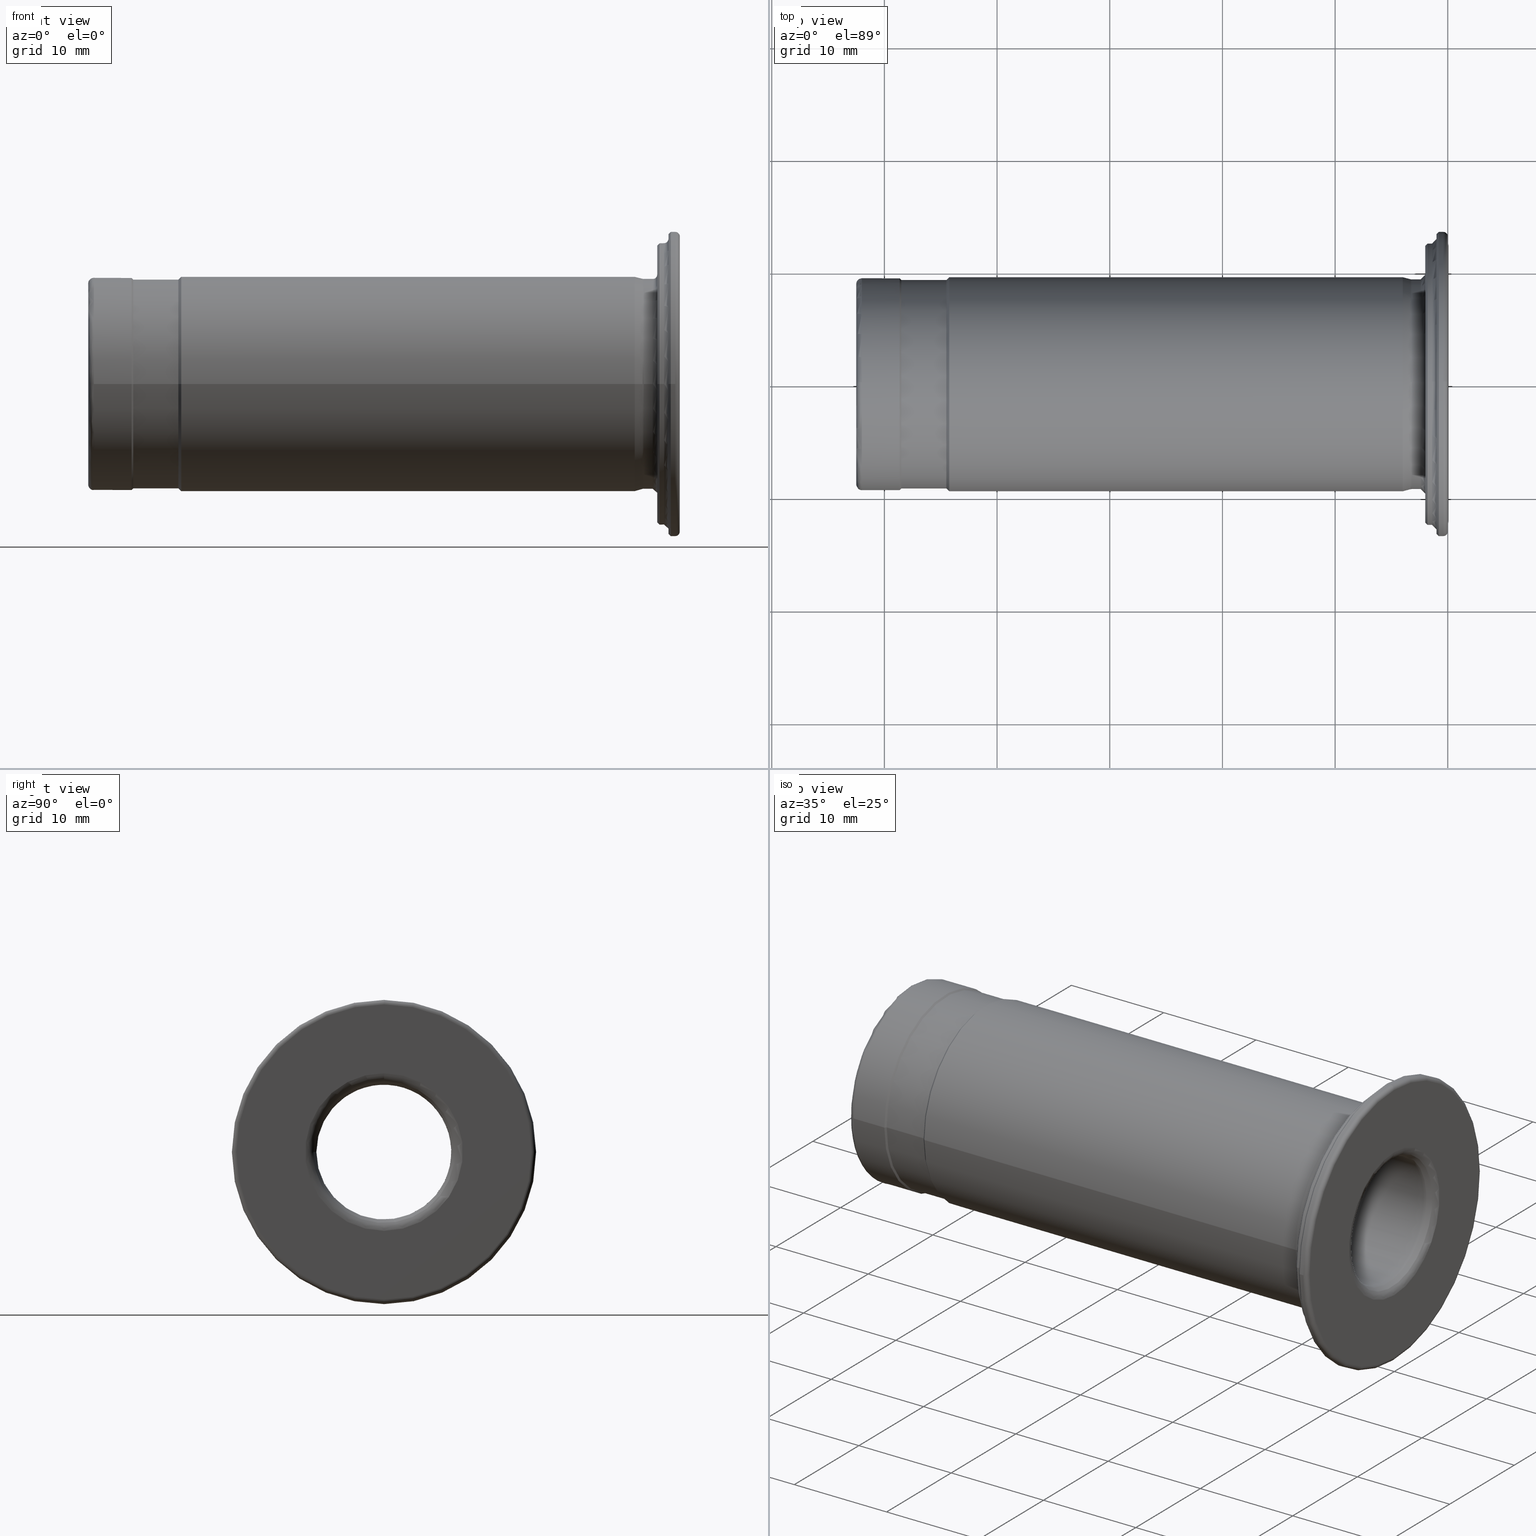
[diagram: canonical four-view strip — front | top / right | iso, engineering-drawing reading convention]
A machine part, canonical four-view strip (front | top / right | iso — engineering-drawing reading convention). The complete STEP part file that produces these views, byte-faithful:
ISO-10303-21;
HEADER;
/* Generated by software containing ST-Developer
 * from STEP Tools, Inc. (www.steptools.com) 
 */

FILE_DESCRIPTION(
/* description */ (''),
/* implementation_level */ '2;1');

FILE_NAME(
/* name */ 
'\\\\SSKT-NAS\\Lab-Data\\\X2\C5F0AD6CC18C\X0\\\DRAWING_3D\\1. \X2\C778BCA4D130\X0\\\
4. LAY-OUT\\ACCESSORY&OTEHERS\\HYDRAULIC CHUCK\\REDUCTION SLEEVE (COLL
ET)\\HK\\HK19.05\\HK19.05-12\\HK19.05-12.stp',
/* time_stamp */ '2022-11-17T11:42:56+09:00',
/* author */ ('YSH'),
/* organization */ (''),
/* preprocessor_version */ 'ST-DEVELOPER v18.1',
/* originating_system */ 'Autodesk Inventor 2022',
/* authorisation */ '');

FILE_SCHEMA (('AUTOMOTIVE_DESIGN { 1 0 10303 214 3 1 1 }'));
ENDSEC;

DATA;
#10=MECHANICAL_DESIGN_GEOMETRIC_PRESENTATION_REPRESENTATION('',(#421,#422,
#423,#424,#425,#426,#427,#428,#429,#430,#431,#432,#433,#434,#435,#436,#437,
#438,#439,#440,#441,#442,#443,#444,#445,#446,#447,#448,#449,#450),#886);
#11=SHAPE_REPRESENTATION_RELATIONSHIP('SRR','None',#893,#12);
#12=ADVANCED_BREP_SHAPE_REPRESENTATION('',(#13),#885);
#13=MANIFOLD_SOLID_BREP('\X2\C194B9ACB4DC\X0\1',#480);
#14=FACE_BOUND('',#113,.T.);
#15=FACE_BOUND('',#118,.T.);
#16=FACE_BOUND('',#123,.T.);
#17=FACE_BOUND('',#134,.T.);
#18=PLANE('',#531);
#19=PLANE('',#541);
#20=PLANE('',#551);
#21=PLANE('',#578);
#22=CONICAL_SURFACE('',#510,9.35000000000012,0.785398163397448);
#23=CONICAL_SURFACE('',#514,9.40000000000014,0.785398163397448);
#24=CONICAL_SURFACE('',#518,9.43181483474213,0.261799387799977);
#25=CONICAL_SURFACE('',#533,12.4000000000002,0.785398163396198);
#26=CONICAL_SURFACE('',#543,13.4000000000002,0.785398163396915);
#27=CONICAL_SURFACE('',#557,6.16348369626324,0.523598775598335);
#28=CONICAL_SURFACE('',#566,6.7500000000006,0.785398163397528);
#29=CONICAL_SURFACE('',#570,7.87500000000014,0.785398163397614);
#30=LINE('',#762,#47);
#31=LINE('',#766,#48);
#32=LINE('',#770,#49);
#33=LINE('',#774,#50);
#34=LINE('',#778,#51);
#35=LINE('',#783,#52);
#36=LINE('',#795,#53);
#37=LINE('',#807,#54);
#38=LINE('',#812,#55);
#39=LINE('',#824,#56);
#40=LINE('',#829,#57);
#41=LINE('',#846,#58);
#42=LINE('',#858,#59);
#43=LINE('',#862,#60);
#44=LINE('',#866,#61);
#45=LINE('',#870,#62);
#46=LINE('',#874,#63);
#47=VECTOR('',#595,9.42500000000015);
#48=VECTOR('',#600,9.35000000000012);
#49=VECTOR('',#605,9.27500000000011);
#50=VECTOR('',#610,9.40000000000014);
#51=VECTOR('',#615,9.52500000000017);
#52=VECTOR('',#620,9.43181483474213);
#53=VECTOR('',#635,9.32499999999943);
#54=VECTOR('',#652,12.4000000000002);
#55=VECTOR('',#657,12.4999999999997);
#56=VECTOR('',#674,13.4000000000002);
#57=VECTOR('',#679,13.5);
#58=VECTOR('',#702,6.16348369626323);
#59=VECTOR('',#717,6.00000000000101);
#60=VECTOR('',#722,6.7500000000006);
#61=VECTOR('',#727,7.50000000000016);
#62=VECTOR('',#732,7.87500000000014);
#63=VECTOR('',#737,8.25000000000014);
#64=CYLINDRICAL_SURFACE('',#508,9.42500000000015);
#65=CYLINDRICAL_SURFACE('',#512,9.27500000000011);
#66=CYLINDRICAL_SURFACE('',#516,9.52500000000017);
#67=CYLINDRICAL_SURFACE('',#525,9.32499999999943);
#68=CYLINDRICAL_SURFACE('',#535,12.4999999999997);
#69=CYLINDRICAL_SURFACE('',#545,13.5);
#70=CYLINDRICAL_SURFACE('',#564,6.00000000000101);
#71=CYLINDRICAL_SURFACE('',#568,7.50000000000016);
#72=CYLINDRICAL_SURFACE('',#572,8.25000000000014);
#73=FACE_OUTER_BOUND('',#102,.T.);
#74=FACE_OUTER_BOUND('',#103,.T.);
#75=FACE_OUTER_BOUND('',#104,.T.);
#76=FACE_OUTER_BOUND('',#105,.T.);
#77=FACE_OUTER_BOUND('',#106,.T.);
#78=FACE_OUTER_BOUND('',#107,.T.);
#79=FACE_OUTER_BOUND('',#108,.T.);
#80=FACE_OUTER_BOUND('',#109,.T.);
#81=FACE_OUTER_BOUND('',#110,.T.);
#82=FACE_OUTER_BOUND('',#111,.T.);
#83=FACE_OUTER_BOUND('',#112,.T.);
#84=FACE_OUTER_BOUND('',#114,.T.);
#85=FACE_OUTER_BOUND('',#115,.T.);
#86=FACE_OUTER_BOUND('',#116,.T.);
#87=FACE_OUTER_BOUND('',#117,.T.);
#88=FACE_OUTER_BOUND('',#119,.T.);
#89=FACE_OUTER_BOUND('',#120,.T.);
#90=FACE_OUTER_BOUND('',#121,.T.);
#91=FACE_OUTER_BOUND('',#122,.T.);
#92=FACE_OUTER_BOUND('',#124,.T.);
#93=FACE_OUTER_BOUND('',#125,.T.);
#94=FACE_OUTER_BOUND('',#126,.T.);
#95=FACE_OUTER_BOUND('',#127,.T.);
#96=FACE_OUTER_BOUND('',#128,.T.);
#97=FACE_OUTER_BOUND('',#129,.T.);
#98=FACE_OUTER_BOUND('',#130,.T.);
#99=FACE_OUTER_BOUND('',#131,.T.);
#100=FACE_OUTER_BOUND('',#132,.T.);
#101=FACE_OUTER_BOUND('',#133,.T.);
#102=EDGE_LOOP('',(#285,#286,#287,#288,#289));
#103=EDGE_LOOP('',(#290,#291,#292,#293,#294));
#104=EDGE_LOOP('',(#295,#296,#297,#298));
#105=EDGE_LOOP('',(#299,#300,#301,#302));
#106=EDGE_LOOP('',(#303,#304,#305,#306));
#107=EDGE_LOOP('',(#307,#308,#309,#310));
#108=EDGE_LOOP('',(#311,#312,#313,#314,#315));
#109=EDGE_LOOP('',(#316,#317,#318,#319,#320,#321));
#110=EDGE_LOOP('',(#322,#323,#324,#325,#326,#327));
#111=EDGE_LOOP('',(#328,#329,#330,#331,#332));
#112=EDGE_LOOP('',(#333));
#113=EDGE_LOOP('',(#334));
#114=EDGE_LOOP('',(#335,#336,#337,#338));
#115=EDGE_LOOP('',(#339,#340,#341,#342,#343));
#116=EDGE_LOOP('',(#344,#345,#346,#347,#348));
#117=EDGE_LOOP('',(#349));
#118=EDGE_LOOP('',(#350));
#119=EDGE_LOOP('',(#351,#352,#353,#354));
#120=EDGE_LOOP('',(#355,#356,#357,#358,#359));
#121=EDGE_LOOP('',(#360,#361,#362,#363,#364));
#122=EDGE_LOOP('',(#365));
#123=EDGE_LOOP('',(#366));
#124=EDGE_LOOP('',(#367,#368,#369,#370,#371));
#125=EDGE_LOOP('',(#372,#373,#374,#375,#376,#377));
#126=EDGE_LOOP('',(#378,#379,#380,#381,#382,#383));
#127=EDGE_LOOP('',(#384,#385,#386,#387,#388));
#128=EDGE_LOOP('',(#389,#390,#391,#392));
#129=EDGE_LOOP('',(#393,#394,#395,#396));
#130=EDGE_LOOP('',(#397,#398,#399,#400));
#131=EDGE_LOOP('',(#401,#402,#403,#404,#405));
#132=EDGE_LOOP('',(#406,#407,#408,#409,#410));
#133=EDGE_LOOP('',(#411));
#134=EDGE_LOOP('',(#412));
#135=CIRCLE('',#504,9.42500000000015);
#136=CIRCLE('',#505,9.42500000000015);
#137=CIRCLE('',#506,0.5);
#138=CIRCLE('',#507,8.92500000000015);
#139=CIRCLE('',#509,9.42500000000012);
#140=CIRCLE('',#511,9.27500000000011);
#141=CIRCLE('',#513,9.27500000000011);
#142=CIRCLE('',#515,9.52500000000017);
#143=CIRCLE('',#517,9.52500000000017);
#144=CIRCLE('',#519,9.33862966948438);
#145=CIRCLE('',#520,9.33862966948438);
#146=CIRCLE('',#522,0.400000000000067);
#147=CIRCLE('',#523,9.32499999999992);
#148=CIRCLE('',#524,9.32499999999992);
#149=CIRCLE('',#526,9.32499999999907);
#150=CIRCLE('',#527,9.32499999999907);
#151=CIRCLE('',#529,0.4);
#152=CIRCLE('',#530,9.72499999999913);
#153=CIRCLE('',#532,12.3000000000001);
#154=CIRCLE('',#534,12.5000000000002);
#155=CIRCLE('',#536,12.4999999999993);
#156=CIRCLE('',#537,12.4999999999993);
#157=CIRCLE('',#539,0.4);
#158=CIRCLE('',#540,12.8999999999993);
#159=CIRCLE('',#542,13.3000000000003);
#160=CIRCLE('',#544,13.5);
#161=CIRCLE('',#546,13.5);
#162=CIRCLE('',#547,13.5);
#163=CIRCLE('',#549,13.1000000000001);
#164=CIRCLE('',#550,0.39999999999992);
#165=CIRCLE('',#552,7.00000000000102);
#166=CIRCLE('',#554,6.29289321881448);
#167=CIRCLE('',#555,6.29289321881448);
#168=CIRCLE('',#556,1.);
#169=CIRCLE('',#558,6.03407417371199);
#170=CIRCLE('',#559,6.03407417371199);
#171=CIRCLE('',#561,6.00000000000103);
#172=CIRCLE('',#562,6.00000000000103);
#173=CIRCLE('',#563,1.);
#174=CIRCLE('',#565,6.00000000000101);
#175=CIRCLE('',#567,7.50000000000018);
#176=CIRCLE('',#569,7.50000000000015);
#177=CIRCLE('',#571,8.25000000000014);
#178=CIRCLE('',#573,8.25000000000016);
#179=CIRCLE('',#574,8.25000000000016);
#180=CIRCLE('',#576,8.75000000000016);
#181=CIRCLE('',#577,0.5);
#182=VERTEX_POINT('',#752);
#183=VERTEX_POINT('',#753);
#184=VERTEX_POINT('',#756);
#185=VERTEX_POINT('',#760);
#186=VERTEX_POINT('',#764);
#187=VERTEX_POINT('',#768);
#188=VERTEX_POINT('',#772);
#189=VERTEX_POINT('',#776);
#190=VERTEX_POINT('',#780);
#191=VERTEX_POINT('',#781);
#192=VERTEX_POINT('',#786);
#193=VERTEX_POINT('',#788);
#194=VERTEX_POINT('',#792);
#195=VERTEX_POINT('',#793);
#196=VERTEX_POINT('',#798);
#197=VERTEX_POINT('',#802);
#198=VERTEX_POINT('',#805);
#199=VERTEX_POINT('',#809);
#200=VERTEX_POINT('',#810);
#201=VERTEX_POINT('',#815);
#202=VERTEX_POINT('',#819);
#203=VERTEX_POINT('',#822);
#204=VERTEX_POINT('',#826);
#205=VERTEX_POINT('',#827);
#206=VERTEX_POINT('',#832);
#207=VERTEX_POINT('',#836);
#208=VERTEX_POINT('',#839);
#209=VERTEX_POINT('',#840);
#210=VERTEX_POINT('',#845);
#211=VERTEX_POINT('',#847);
#212=VERTEX_POINT('',#851);
#213=VERTEX_POINT('',#852);
#214=VERTEX_POINT('',#857);
#215=VERTEX_POINT('',#861);
#216=VERTEX_POINT('',#865);
#217=VERTEX_POINT('',#869);
#218=VERTEX_POINT('',#873);
#219=VERTEX_POINT('',#875);
#220=VERTEX_POINT('',#879);
#221=EDGE_CURVE('',#182,#183,#135,.T.);
#222=EDGE_CURVE('',#183,#182,#136,.T.);
#223=EDGE_CURVE('',#183,#184,#137,.T.);
#224=EDGE_CURVE('',#184,#184,#138,.T.);
#225=EDGE_CURVE('',#185,#185,#139,.T.);
#226=EDGE_CURVE('',#185,#182,#30,.T.);
#227=EDGE_CURVE('',#186,#186,#140,.T.);
#228=EDGE_CURVE('',#186,#185,#31,.T.);
#229=EDGE_CURVE('',#187,#187,#141,.T.);
#230=EDGE_CURVE('',#187,#186,#32,.T.);
#231=EDGE_CURVE('',#188,#188,#142,.T.);
#232=EDGE_CURVE('',#188,#187,#33,.T.);
#233=EDGE_CURVE('',#189,#189,#143,.T.);
#234=EDGE_CURVE('',#189,#188,#34,.T.);
#235=EDGE_CURVE('',#190,#191,#144,.T.);
#236=EDGE_CURVE('',#190,#189,#35,.T.);
#237=EDGE_CURVE('',#191,#190,#145,.T.);
#238=EDGE_CURVE('',#191,#192,#146,.T.);
#239=EDGE_CURVE('',#193,#192,#147,.T.);
#240=EDGE_CURVE('',#192,#193,#148,.T.);
#241=EDGE_CURVE('',#194,#195,#149,.T.);
#242=EDGE_CURVE('',#194,#193,#36,.T.);
#243=EDGE_CURVE('',#195,#194,#150,.T.);
#244=EDGE_CURVE('',#195,#196,#151,.T.);
#245=EDGE_CURVE('',#196,#196,#152,.T.);
#246=EDGE_CURVE('',#197,#197,#153,.T.);
#247=EDGE_CURVE('',#198,#198,#154,.T.);
#248=EDGE_CURVE('',#198,#197,#37,.T.);
#249=EDGE_CURVE('',#199,#200,#155,.T.);
#250=EDGE_CURVE('',#199,#198,#38,.T.);
#251=EDGE_CURVE('',#200,#199,#156,.T.);
#252=EDGE_CURVE('',#200,#201,#157,.T.);
#253=EDGE_CURVE('',#201,#201,#158,.T.);
#254=EDGE_CURVE('',#202,#202,#159,.T.);
#255=EDGE_CURVE('',#203,#203,#160,.T.);
#256=EDGE_CURVE('',#203,#202,#39,.T.);
#257=EDGE_CURVE('',#204,#205,#161,.T.);
#258=EDGE_CURVE('',#204,#203,#40,.T.);
#259=EDGE_CURVE('',#205,#204,#162,.T.);
#260=EDGE_CURVE('',#206,#206,#163,.T.);
#261=EDGE_CURVE('',#206,#205,#164,.T.);
#262=EDGE_CURVE('',#207,#207,#165,.T.);
#263=EDGE_CURVE('',#208,#209,#166,.T.);
#264=EDGE_CURVE('',#209,#208,#167,.T.);
#265=EDGE_CURVE('',#209,#207,#168,.T.);
#266=EDGE_CURVE('',#208,#210,#41,.T.);
#267=EDGE_CURVE('',#211,#210,#169,.T.);
#268=EDGE_CURVE('',#210,#211,#170,.T.);
#269=EDGE_CURVE('',#212,#213,#171,.T.);
#270=EDGE_CURVE('',#213,#212,#172,.T.);
#271=EDGE_CURVE('',#213,#211,#173,.T.);
#272=EDGE_CURVE('',#212,#214,#42,.T.);
#273=EDGE_CURVE('',#214,#214,#174,.T.);
#274=EDGE_CURVE('',#214,#215,#43,.T.);
#275=EDGE_CURVE('',#215,#215,#175,.T.);
#276=EDGE_CURVE('',#215,#216,#44,.T.);
#277=EDGE_CURVE('',#216,#216,#176,.T.);
#278=EDGE_CURVE('',#216,#217,#45,.T.);
#279=EDGE_CURVE('',#217,#217,#177,.T.);
#280=EDGE_CURVE('',#217,#218,#46,.T.);
#281=EDGE_CURVE('',#219,#218,#178,.T.);
#282=EDGE_CURVE('',#218,#219,#179,.T.);
#283=EDGE_CURVE('',#220,#220,#180,.T.);
#284=EDGE_CURVE('',#220,#219,#181,.T.);
#285=ORIENTED_EDGE('',*,*,#221,.F.);
#286=ORIENTED_EDGE('',*,*,#222,.F.);
#287=ORIENTED_EDGE('',*,*,#223,.T.);
#288=ORIENTED_EDGE('',*,*,#224,.T.);
#289=ORIENTED_EDGE('',*,*,#223,.F.);
#290=ORIENTED_EDGE('',*,*,#225,.F.);
#291=ORIENTED_EDGE('',*,*,#226,.T.);
#292=ORIENTED_EDGE('',*,*,#221,.T.);
#293=ORIENTED_EDGE('',*,*,#222,.T.);
#294=ORIENTED_EDGE('',*,*,#226,.F.);
#295=ORIENTED_EDGE('',*,*,#227,.F.);
#296=ORIENTED_EDGE('',*,*,#228,.T.);
#297=ORIENTED_EDGE('',*,*,#225,.T.);
#298=ORIENTED_EDGE('',*,*,#228,.F.);
#299=ORIENTED_EDGE('',*,*,#229,.F.);
#300=ORIENTED_EDGE('',*,*,#230,.T.);
#301=ORIENTED_EDGE('',*,*,#227,.T.);
#302=ORIENTED_EDGE('',*,*,#230,.F.);
#303=ORIENTED_EDGE('',*,*,#231,.F.);
#304=ORIENTED_EDGE('',*,*,#232,.T.);
#305=ORIENTED_EDGE('',*,*,#229,.T.);
#306=ORIENTED_EDGE('',*,*,#232,.F.);
#307=ORIENTED_EDGE('',*,*,#233,.F.);
#308=ORIENTED_EDGE('',*,*,#234,.T.);
#309=ORIENTED_EDGE('',*,*,#231,.T.);
#310=ORIENTED_EDGE('',*,*,#234,.F.);
#311=ORIENTED_EDGE('',*,*,#235,.F.);
#312=ORIENTED_EDGE('',*,*,#236,.T.);
#313=ORIENTED_EDGE('',*,*,#233,.T.);
#314=ORIENTED_EDGE('',*,*,#236,.F.);
#315=ORIENTED_EDGE('',*,*,#237,.F.);
#316=ORIENTED_EDGE('',*,*,#235,.T.);
#317=ORIENTED_EDGE('',*,*,#238,.T.);
#318=ORIENTED_EDGE('',*,*,#239,.F.);
#319=ORIENTED_EDGE('',*,*,#240,.F.);
#320=ORIENTED_EDGE('',*,*,#238,.F.);
#321=ORIENTED_EDGE('',*,*,#237,.T.);
#322=ORIENTED_EDGE('',*,*,#241,.F.);
#323=ORIENTED_EDGE('',*,*,#242,.T.);
#324=ORIENTED_EDGE('',*,*,#239,.T.);
#325=ORIENTED_EDGE('',*,*,#240,.T.);
#326=ORIENTED_EDGE('',*,*,#242,.F.);
#327=ORIENTED_EDGE('',*,*,#243,.F.);
#328=ORIENTED_EDGE('',*,*,#241,.T.);
#329=ORIENTED_EDGE('',*,*,#244,.T.);
#330=ORIENTED_EDGE('',*,*,#245,.F.);
#331=ORIENTED_EDGE('',*,*,#244,.F.);
#332=ORIENTED_EDGE('',*,*,#243,.T.);
#333=ORIENTED_EDGE('',*,*,#246,.F.);
#334=ORIENTED_EDGE('',*,*,#245,.T.);
#335=ORIENTED_EDGE('',*,*,#247,.F.);
#336=ORIENTED_EDGE('',*,*,#248,.T.);
#337=ORIENTED_EDGE('',*,*,#246,.T.);
#338=ORIENTED_EDGE('',*,*,#248,.F.);
#339=ORIENTED_EDGE('',*,*,#249,.F.);
#340=ORIENTED_EDGE('',*,*,#250,.T.);
#341=ORIENTED_EDGE('',*,*,#247,.T.);
#342=ORIENTED_EDGE('',*,*,#250,.F.);
#343=ORIENTED_EDGE('',*,*,#251,.F.);
#344=ORIENTED_EDGE('',*,*,#249,.T.);
#345=ORIENTED_EDGE('',*,*,#252,.T.);
#346=ORIENTED_EDGE('',*,*,#253,.F.);
#347=ORIENTED_EDGE('',*,*,#252,.F.);
#348=ORIENTED_EDGE('',*,*,#251,.T.);
#349=ORIENTED_EDGE('',*,*,#254,.F.);
#350=ORIENTED_EDGE('',*,*,#253,.T.);
#351=ORIENTED_EDGE('',*,*,#255,.F.);
#352=ORIENTED_EDGE('',*,*,#256,.T.);
#353=ORIENTED_EDGE('',*,*,#254,.T.);
#354=ORIENTED_EDGE('',*,*,#256,.F.);
#355=ORIENTED_EDGE('',*,*,#257,.F.);
#356=ORIENTED_EDGE('',*,*,#258,.T.);
#357=ORIENTED_EDGE('',*,*,#255,.T.);
#358=ORIENTED_EDGE('',*,*,#258,.F.);
#359=ORIENTED_EDGE('',*,*,#259,.F.);
#360=ORIENTED_EDGE('',*,*,#260,.F.);
#361=ORIENTED_EDGE('',*,*,#261,.T.);
#362=ORIENTED_EDGE('',*,*,#259,.T.);
#363=ORIENTED_EDGE('',*,*,#257,.T.);
#364=ORIENTED_EDGE('',*,*,#261,.F.);
#365=ORIENTED_EDGE('',*,*,#260,.T.);
#366=ORIENTED_EDGE('',*,*,#262,.F.);
#367=ORIENTED_EDGE('',*,*,#263,.F.);
#368=ORIENTED_EDGE('',*,*,#264,.F.);
#369=ORIENTED_EDGE('',*,*,#265,.T.);
#370=ORIENTED_EDGE('',*,*,#262,.T.);
#371=ORIENTED_EDGE('',*,*,#265,.F.);
#372=ORIENTED_EDGE('',*,*,#263,.T.);
#373=ORIENTED_EDGE('',*,*,#264,.T.);
#374=ORIENTED_EDGE('',*,*,#266,.T.);
#375=ORIENTED_EDGE('',*,*,#267,.F.);
#376=ORIENTED_EDGE('',*,*,#268,.F.);
#377=ORIENTED_EDGE('',*,*,#266,.F.);
#378=ORIENTED_EDGE('',*,*,#269,.F.);
#379=ORIENTED_EDGE('',*,*,#270,.F.);
#380=ORIENTED_EDGE('',*,*,#271,.T.);
#381=ORIENTED_EDGE('',*,*,#267,.T.);
#382=ORIENTED_EDGE('',*,*,#268,.T.);
#383=ORIENTED_EDGE('',*,*,#271,.F.);
#384=ORIENTED_EDGE('',*,*,#269,.T.);
#385=ORIENTED_EDGE('',*,*,#270,.T.);
#386=ORIENTED_EDGE('',*,*,#272,.T.);
#387=ORIENTED_EDGE('',*,*,#273,.F.);
#388=ORIENTED_EDGE('',*,*,#272,.F.);
#389=ORIENTED_EDGE('',*,*,#273,.T.);
#390=ORIENTED_EDGE('',*,*,#274,.T.);
#391=ORIENTED_EDGE('',*,*,#275,.F.);
#392=ORIENTED_EDGE('',*,*,#274,.F.);
#393=ORIENTED_EDGE('',*,*,#275,.T.);
#394=ORIENTED_EDGE('',*,*,#276,.T.);
#395=ORIENTED_EDGE('',*,*,#277,.F.);
#396=ORIENTED_EDGE('',*,*,#276,.F.);
#397=ORIENTED_EDGE('',*,*,#277,.T.);
#398=ORIENTED_EDGE('',*,*,#278,.T.);
#399=ORIENTED_EDGE('',*,*,#279,.F.);
#400=ORIENTED_EDGE('',*,*,#278,.F.);
#401=ORIENTED_EDGE('',*,*,#279,.T.);
#402=ORIENTED_EDGE('',*,*,#280,.T.);
#403=ORIENTED_EDGE('',*,*,#281,.F.);
#404=ORIENTED_EDGE('',*,*,#282,.F.);
#405=ORIENTED_EDGE('',*,*,#280,.F.);
#406=ORIENTED_EDGE('',*,*,#283,.F.);
#407=ORIENTED_EDGE('',*,*,#284,.T.);
#408=ORIENTED_EDGE('',*,*,#281,.T.);
#409=ORIENTED_EDGE('',*,*,#282,.T.);
#410=ORIENTED_EDGE('',*,*,#284,.F.);
#411=ORIENTED_EDGE('',*,*,#224,.F.);
#412=ORIENTED_EDGE('',*,*,#283,.T.);
#413=TOROIDAL_SURFACE('',#503,8.92500000000015,0.5);
#414=TOROIDAL_SURFACE('',#521,9.72499999999999,0.400000000000067);
#415=TOROIDAL_SURFACE('',#528,9.72499999999907,0.4);
#416=TOROIDAL_SURFACE('',#538,12.8999999999993,0.4);
#417=TOROIDAL_SURFACE('',#548,13.1000000000001,0.39999999999992);
#418=TOROIDAL_SURFACE('',#553,7.00000000000102,1.);
#419=TOROIDAL_SURFACE('',#560,7.00000000000103,1.);
#420=TOROIDAL_SURFACE('',#575,8.75000000000016,0.5);
#421=STYLED_ITEM('',(#902),#451);
#422=STYLED_ITEM('',(#902),#452);
#423=STYLED_ITEM('',(#902),#453);
#424=STYLED_ITEM('',(#902),#454);
#425=STYLED_ITEM('',(#902),#455);
#426=STYLED_ITEM('',(#902),#456);
#427=STYLED_ITEM('',(#902),#457);
#428=STYLED_ITEM('',(#902),#458);
#429=STYLED_ITEM('',(#902),#459);
#430=STYLED_ITEM('',(#902),#460);
#431=STYLED_ITEM('',(#902),#461);
#432=STYLED_ITEM('',(#902),#462);
#433=STYLED_ITEM('',(#902),#463);
#434=STYLED_ITEM('',(#902),#464);
#435=STYLED_ITEM('',(#902),#465);
#436=STYLED_ITEM('',(#902),#466);
#437=STYLED_ITEM('',(#902),#467);
#438=STYLED_ITEM('',(#902),#468);
#439=STYLED_ITEM('',(#902),#469);
#440=STYLED_ITEM('',(#902),#470);
#441=STYLED_ITEM('',(#902),#471);
#442=STYLED_ITEM('',(#902),#472);
#443=STYLED_ITEM('',(#902),#473);
#444=STYLED_ITEM('',(#902),#474);
#445=STYLED_ITEM('',(#902),#475);
#446=STYLED_ITEM('',(#902),#476);
#447=STYLED_ITEM('',(#902),#477);
#448=STYLED_ITEM('',(#902),#478);
#449=STYLED_ITEM('',(#902),#479);
#450=STYLED_ITEM('',(#902),#13);
#451=ADVANCED_FACE('',(#73),#413,.T.);
#452=ADVANCED_FACE('',(#74),#64,.T.);
#453=ADVANCED_FACE('',(#75),#22,.T.);
#454=ADVANCED_FACE('',(#76),#65,.T.);
#455=ADVANCED_FACE('',(#77),#23,.T.);
#456=ADVANCED_FACE('',(#78),#66,.T.);
#457=ADVANCED_FACE('',(#79),#24,.T.);
#458=ADVANCED_FACE('',(#80),#414,.F.);
#459=ADVANCED_FACE('',(#81),#67,.T.);
#460=ADVANCED_FACE('',(#82),#415,.F.);
#461=ADVANCED_FACE('',(#83,#14),#18,.T.);
#462=ADVANCED_FACE('',(#84),#25,.T.);
#463=ADVANCED_FACE('',(#85),#68,.T.);
#464=ADVANCED_FACE('',(#86),#416,.F.);
#465=ADVANCED_FACE('',(#87,#15),#19,.T.);
#466=ADVANCED_FACE('',(#88),#26,.T.);
#467=ADVANCED_FACE('',(#89),#69,.T.);
#468=ADVANCED_FACE('',(#90),#417,.T.);
#469=ADVANCED_FACE('',(#91,#16),#20,.T.);
#470=ADVANCED_FACE('',(#92),#418,.T.);
#471=ADVANCED_FACE('',(#93),#27,.F.);
#472=ADVANCED_FACE('',(#94),#419,.T.);
#473=ADVANCED_FACE('',(#95),#70,.F.);
#474=ADVANCED_FACE('',(#96),#28,.F.);
#475=ADVANCED_FACE('',(#97),#71,.F.);
#476=ADVANCED_FACE('',(#98),#29,.F.);
#477=ADVANCED_FACE('',(#99),#72,.F.);
#478=ADVANCED_FACE('',(#100),#420,.T.);
#479=ADVANCED_FACE('',(#101,#17),#21,.T.);
#480=CLOSED_SHELL('',(#451,#452,#453,#454,#455,#456,#457,#458,#459,#460,
#461,#462,#463,#464,#465,#466,#467,#468,#469,#470,#471,#472,#473,#474,#475,
#476,#477,#478,#479));
#481=DERIVED_UNIT_ELEMENT(#484,1.);
#482=DERIVED_UNIT_ELEMENT(#888,-3.);
#483=DIMENSIONAL_EXPONENTS(1.,0.,0.,0.,0.,0.,0.);
#484=(
CONVERSION_BASED_UNIT('gram',#486)
MASS_UNIT()
NAMED_UNIT(#483)
);
#485=(
MASS_UNIT()
NAMED_UNIT(*)
SI_UNIT(.KILO.,.GRAM.)
);
#486=MASS_MEASURE_WITH_UNIT(MASS_MEASURE(0.001),#485);
#487=DERIVED_UNIT((#481,#482));
#488=MEASURE_REPRESENTATION_ITEM('density measure',
POSITIVE_RATIO_MEASURE(7.85),#487);
#489=PROPERTY_DEFINITION_REPRESENTATION(#494,#491);
#490=PROPERTY_DEFINITION_REPRESENTATION(#495,#492);
#491=REPRESENTATION('material name',(#493),#885);
#492=REPRESENTATION('density',(#488),#885);
#493=DESCRIPTIVE_REPRESENTATION_ITEM('SUJ2','SUJ2');
#494=PROPERTY_DEFINITION('material property','material name',#895);
#495=PROPERTY_DEFINITION('material property','density of part',#895);
#496=DATE_TIME_ROLE('creation_date');
#497=APPLIED_DATE_AND_TIME_ASSIGNMENT(#498,#496,(#895));
#498=DATE_AND_TIME(#499,#500);
#499=CALENDAR_DATE(2022,17,11);
#500=LOCAL_TIME(0,0,0.,#501);
#501=COORDINATED_UNIVERSAL_TIME_OFFSET(0,0,.BEHIND.);
#502=AXIS2_PLACEMENT_3D('placement',#750,#579,#580);
#503=AXIS2_PLACEMENT_3D('',#751,#581,#582);
#504=AXIS2_PLACEMENT_3D('',#754,#583,#584);
#505=AXIS2_PLACEMENT_3D('',#755,#585,#586);
#506=AXIS2_PLACEMENT_3D('',#757,#587,#588);
#507=AXIS2_PLACEMENT_3D('',#758,#589,#590);
#508=AXIS2_PLACEMENT_3D('',#759,#591,#592);
#509=AXIS2_PLACEMENT_3D('',#761,#593,#594);
#510=AXIS2_PLACEMENT_3D('',#763,#596,#597);
#511=AXIS2_PLACEMENT_3D('',#765,#598,#599);
#512=AXIS2_PLACEMENT_3D('',#767,#601,#602);
#513=AXIS2_PLACEMENT_3D('',#769,#603,#604);
#514=AXIS2_PLACEMENT_3D('',#771,#606,#607);
#515=AXIS2_PLACEMENT_3D('',#773,#608,#609);
#516=AXIS2_PLACEMENT_3D('',#775,#611,#612);
#517=AXIS2_PLACEMENT_3D('',#777,#613,#614);
#518=AXIS2_PLACEMENT_3D('',#779,#616,#617);
#519=AXIS2_PLACEMENT_3D('',#782,#618,#619);
#520=AXIS2_PLACEMENT_3D('',#784,#621,#622);
#521=AXIS2_PLACEMENT_3D('',#785,#623,#624);
#522=AXIS2_PLACEMENT_3D('',#787,#625,#626);
#523=AXIS2_PLACEMENT_3D('',#789,#627,#628);
#524=AXIS2_PLACEMENT_3D('',#790,#629,#630);
#525=AXIS2_PLACEMENT_3D('',#791,#631,#632);
#526=AXIS2_PLACEMENT_3D('',#794,#633,#634);
#527=AXIS2_PLACEMENT_3D('',#796,#636,#637);
#528=AXIS2_PLACEMENT_3D('',#797,#638,#639);
#529=AXIS2_PLACEMENT_3D('',#799,#640,#641);
#530=AXIS2_PLACEMENT_3D('',#800,#642,#643);
#531=AXIS2_PLACEMENT_3D('',#801,#644,#645);
#532=AXIS2_PLACEMENT_3D('',#803,#646,#647);
#533=AXIS2_PLACEMENT_3D('',#804,#648,#649);
#534=AXIS2_PLACEMENT_3D('',#806,#650,#651);
#535=AXIS2_PLACEMENT_3D('',#808,#653,#654);
#536=AXIS2_PLACEMENT_3D('',#811,#655,#656);
#537=AXIS2_PLACEMENT_3D('',#813,#658,#659);
#538=AXIS2_PLACEMENT_3D('',#814,#660,#661);
#539=AXIS2_PLACEMENT_3D('',#816,#662,#663);
#540=AXIS2_PLACEMENT_3D('',#817,#664,#665);
#541=AXIS2_PLACEMENT_3D('',#818,#666,#667);
#542=AXIS2_PLACEMENT_3D('',#820,#668,#669);
#543=AXIS2_PLACEMENT_3D('',#821,#670,#671);
#544=AXIS2_PLACEMENT_3D('',#823,#672,#673);
#545=AXIS2_PLACEMENT_3D('',#825,#675,#676);
#546=AXIS2_PLACEMENT_3D('',#828,#677,#678);
#547=AXIS2_PLACEMENT_3D('',#830,#680,#681);
#548=AXIS2_PLACEMENT_3D('',#831,#682,#683);
#549=AXIS2_PLACEMENT_3D('',#833,#684,#685);
#550=AXIS2_PLACEMENT_3D('',#834,#686,#687);
#551=AXIS2_PLACEMENT_3D('',#835,#688,#689);
#552=AXIS2_PLACEMENT_3D('',#837,#690,#691);
#553=AXIS2_PLACEMENT_3D('',#838,#692,#693);
#554=AXIS2_PLACEMENT_3D('',#841,#694,#695);
#555=AXIS2_PLACEMENT_3D('',#842,#696,#697);
#556=AXIS2_PLACEMENT_3D('',#843,#698,#699);
#557=AXIS2_PLACEMENT_3D('',#844,#700,#701);
#558=AXIS2_PLACEMENT_3D('',#848,#703,#704);
#559=AXIS2_PLACEMENT_3D('',#849,#705,#706);
#560=AXIS2_PLACEMENT_3D('',#850,#707,#708);
#561=AXIS2_PLACEMENT_3D('',#853,#709,#710);
#562=AXIS2_PLACEMENT_3D('',#854,#711,#712);
#563=AXIS2_PLACEMENT_3D('',#855,#713,#714);
#564=AXIS2_PLACEMENT_3D('',#856,#715,#716);
#565=AXIS2_PLACEMENT_3D('',#859,#718,#719);
#566=AXIS2_PLACEMENT_3D('',#860,#720,#721);
#567=AXIS2_PLACEMENT_3D('',#863,#723,#724);
#568=AXIS2_PLACEMENT_3D('',#864,#725,#726);
#569=AXIS2_PLACEMENT_3D('',#867,#728,#729);
#570=AXIS2_PLACEMENT_3D('',#868,#730,#731);
#571=AXIS2_PLACEMENT_3D('',#871,#733,#734);
#572=AXIS2_PLACEMENT_3D('',#872,#735,#736);
#573=AXIS2_PLACEMENT_3D('',#876,#738,#739);
#574=AXIS2_PLACEMENT_3D('',#877,#740,#741);
#575=AXIS2_PLACEMENT_3D('',#878,#742,#743);
#576=AXIS2_PLACEMENT_3D('',#880,#744,#745);
#577=AXIS2_PLACEMENT_3D('',#881,#746,#747);
#578=AXIS2_PLACEMENT_3D('',#882,#748,#749);
#579=DIRECTION('axis',(0.,0.,1.));
#580=DIRECTION('refdir',(1.,0.,0.));
#581=DIRECTION('center_axis',(1.,0.,0.));
#582=DIRECTION('ref_axis',(0.,0.,-1.));
#583=DIRECTION('center_axis',(1.,0.,0.));
#584=DIRECTION('ref_axis',(0.,0.,-1.));
#585=DIRECTION('center_axis',(1.,0.,0.));
#586=DIRECTION('ref_axis',(0.,0.,-1.));
#587=DIRECTION('center_axis',(0.,-1.,-1.22464679914735E-16));
#588=DIRECTION('ref_axis',(0.,-1.22464679914735E-16,1.));
#589=DIRECTION('center_axis',(1.,0.,0.));
#590=DIRECTION('ref_axis',(0.,0.,-1.));
#591=DIRECTION('center_axis',(1.,0.,0.));
#592=DIRECTION('ref_axis',(0.,1.,0.));
#593=DIRECTION('center_axis',(1.,0.,0.));
#594=DIRECTION('ref_axis',(0.,0.,-1.));
#595=DIRECTION('',(-1.,0.,0.));
#596=DIRECTION('center_axis',(-1.,0.,0.));
#597=DIRECTION('ref_axis',(0.,1.,0.));
#598=DIRECTION('center_axis',(1.,0.,0.));
#599=DIRECTION('ref_axis',(0.,0.,-1.));
#600=DIRECTION('',(-0.707106781186548,-0.707106781186548,-8.65956056235493E-17));
#601=DIRECTION('center_axis',(1.,0.,0.));
#602=DIRECTION('ref_axis',(0.,1.,0.));
#603=DIRECTION('center_axis',(1.,0.,0.));
#604=DIRECTION('ref_axis',(0.,0.,-1.));
#605=DIRECTION('',(-1.,0.,0.));
#606=DIRECTION('center_axis',(1.,0.,0.));
#607=DIRECTION('ref_axis',(0.,1.,0.));
#608=DIRECTION('center_axis',(1.,0.,0.));
#609=DIRECTION('ref_axis',(0.,0.,-1.));
#610=DIRECTION('',(-0.707106781186547,0.707106781186547,8.65956056235493E-17));
#611=DIRECTION('center_axis',(1.,0.,0.));
#612=DIRECTION('ref_axis',(0.,1.,0.));
#613=DIRECTION('center_axis',(1.,0.,0.));
#614=DIRECTION('ref_axis',(0.,0.,-1.));
#615=DIRECTION('',(-1.,0.,0.));
#616=DIRECTION('center_axis',(-1.,0.,0.));
#617=DIRECTION('ref_axis',(0.,1.,0.));
#618=DIRECTION('center_axis',(1.,0.,0.));
#619=DIRECTION('ref_axis',(0.,0.,-1.));
#620=DIRECTION('',(-0.965925826288854,-0.25881904510332,-3.16961915144156E-17));
#621=DIRECTION('center_axis',(1.,0.,0.));
#622=DIRECTION('ref_axis',(0.,0.,-1.));
#623=DIRECTION('center_axis',(1.,0.,0.));
#624=DIRECTION('ref_axis',(0.,0.,-1.));
#625=DIRECTION('center_axis',(0.,-1.,-1.22464679914735E-16));
#626=DIRECTION('ref_axis',(0.,-1.22464679914735E-16,1.));
#627=DIRECTION('center_axis',(1.,0.,0.));
#628=DIRECTION('ref_axis',(0.,0.,-1.));
#629=DIRECTION('center_axis',(1.,0.,0.));
#630=DIRECTION('ref_axis',(0.,0.,-1.));
#631=DIRECTION('center_axis',(1.,0.,0.));
#632=DIRECTION('ref_axis',(0.,1.,0.));
#633=DIRECTION('center_axis',(1.,0.,0.));
#634=DIRECTION('ref_axis',(0.,0.,-1.));
#635=DIRECTION('',(-1.,0.,0.));
#636=DIRECTION('center_axis',(1.,0.,0.));
#637=DIRECTION('ref_axis',(0.,0.,-1.));
#638=DIRECTION('center_axis',(1.,0.,0.));
#639=DIRECTION('ref_axis',(0.,0.,-1.));
#640=DIRECTION('center_axis',(0.,-1.,-1.22464679914735E-16));
#641=DIRECTION('ref_axis',(0.,-1.22464679914735E-16,1.));
#642=DIRECTION('center_axis',(1.,0.,0.));
#643=DIRECTION('ref_axis',(0.,0.,-1.));
#644=DIRECTION('center_axis',(-1.,0.,0.));
#645=DIRECTION('ref_axis',(0.,0.,1.));
#646=DIRECTION('center_axis',(1.,0.,0.));
#647=DIRECTION('ref_axis',(0.,0.,-1.));
#648=DIRECTION('center_axis',(1.,0.,0.));
#649=DIRECTION('ref_axis',(0.,1.,0.));
#650=DIRECTION('center_axis',(1.,0.,0.));
#651=DIRECTION('ref_axis',(0.,0.,-1.));
#652=DIRECTION('',(-0.707106781187432,0.707106781185663,8.6595605623441E-17));
#653=DIRECTION('center_axis',(1.,0.,0.));
#654=DIRECTION('ref_axis',(0.,1.,0.));
#655=DIRECTION('center_axis',(1.,0.,0.));
#656=DIRECTION('ref_axis',(0.,0.,-1.));
#657=DIRECTION('',(-1.,0.,0.));
#658=DIRECTION('center_axis',(1.,0.,0.));
#659=DIRECTION('ref_axis',(0.,0.,-1.));
#660=DIRECTION('center_axis',(1.,0.,0.));
#661=DIRECTION('ref_axis',(0.,0.,-1.));
#662=DIRECTION('center_axis',(0.,-1.,-1.22464679914735E-16));
#663=DIRECTION('ref_axis',(0.,-1.22464679914735E-16,1.));
#664=DIRECTION('center_axis',(1.,0.,0.));
#665=DIRECTION('ref_axis',(0.,0.,-1.));
#666=DIRECTION('center_axis',(-1.,0.,0.));
#667=DIRECTION('ref_axis',(0.,0.,1.));
#668=DIRECTION('center_axis',(1.,0.,0.));
#669=DIRECTION('ref_axis',(0.,0.,-1.));
#670=DIRECTION('center_axis',(1.,0.,0.));
#671=DIRECTION('ref_axis',(0.,1.,0.));
#672=DIRECTION('center_axis',(1.,0.,0.));
#673=DIRECTION('ref_axis',(0.,0.,-1.));
#674=DIRECTION('',(-0.707106781186924,0.707106781186171,8.65956056235032E-17));
#675=DIRECTION('center_axis',(1.,0.,0.));
#676=DIRECTION('ref_axis',(0.,1.,0.));
#677=DIRECTION('center_axis',(1.,0.,0.));
#678=DIRECTION('ref_axis',(0.,0.,-1.));
#679=DIRECTION('',(-1.,0.,0.));
#680=DIRECTION('center_axis',(1.,0.,0.));
#681=DIRECTION('ref_axis',(0.,0.,-1.));
#682=DIRECTION('center_axis',(1.,0.,0.));
#683=DIRECTION('ref_axis',(0.,0.,-1.));
#684=DIRECTION('center_axis',(1.,0.,0.));
#685=DIRECTION('ref_axis',(0.,0.,-1.));
#686=DIRECTION('center_axis',(0.,-1.,-1.22464679914735E-16));
#687=DIRECTION('ref_axis',(0.,-1.22464679914735E-16,1.));
#688=DIRECTION('center_axis',(1.,0.,0.));
#689=DIRECTION('ref_axis',(0.,0.,-1.));
#690=DIRECTION('center_axis',(1.,0.,0.));
#691=DIRECTION('ref_axis',(0.,0.,-1.));
#692=DIRECTION('center_axis',(1.,0.,0.));
#693=DIRECTION('ref_axis',(0.,0.,-1.));
#694=DIRECTION('center_axis',(1.,0.,0.));
#695=DIRECTION('ref_axis',(0.,0.,-1.));
#696=DIRECTION('center_axis',(1.,0.,0.));
#697=DIRECTION('ref_axis',(0.,0.,-1.));
#698=DIRECTION('center_axis',(0.,-1.,-1.22464679914735E-16));
#699=DIRECTION('ref_axis',(0.,-1.22464679914735E-16,1.));
#700=DIRECTION('center_axis',(1.,0.,0.));
#701=DIRECTION('ref_axis',(0.,1.,0.));
#702=DIRECTION('',(-0.866025403784421,0.500000000000031,6.12323399573715E-17));
#703=DIRECTION('center_axis',(1.,0.,0.));
#704=DIRECTION('ref_axis',(0.,0.,-1.));
#705=DIRECTION('center_axis',(1.,0.,0.));
#706=DIRECTION('ref_axis',(0.,0.,-1.));
#707=DIRECTION('center_axis',(1.,0.,0.));
#708=DIRECTION('ref_axis',(0.,0.,-1.));
#709=DIRECTION('center_axis',(1.,0.,0.));
#710=DIRECTION('ref_axis',(0.,0.,-1.));
#711=DIRECTION('center_axis',(1.,0.,0.));
#712=DIRECTION('ref_axis',(0.,0.,-1.));
#713=DIRECTION('center_axis',(0.,-1.,-1.22464679914735E-16));
#714=DIRECTION('ref_axis',(0.,-1.22464679914735E-16,1.));
#715=DIRECTION('center_axis',(1.,0.,0.));
#716=DIRECTION('ref_axis',(0.,1.,0.));
#717=DIRECTION('',(-1.,0.,0.));
#718=DIRECTION('center_axis',(1.,0.,0.));
#719=DIRECTION('ref_axis',(0.,0.,-1.));
#720=DIRECTION('center_axis',(-1.,0.,0.));
#721=DIRECTION('ref_axis',(0.,1.,0.));
#722=DIRECTION('',(-0.707106781186491,-0.707106781186604,-8.65956056235563E-17));
#723=DIRECTION('center_axis',(1.,0.,0.));
#724=DIRECTION('ref_axis',(0.,0.,-1.));
#725=DIRECTION('center_axis',(1.,0.,0.));
#726=DIRECTION('ref_axis',(0.,1.,0.));
#727=DIRECTION('',(-1.,0.,0.));
#728=DIRECTION('center_axis',(1.,0.,0.));
#729=DIRECTION('ref_axis',(0.,0.,-1.));
#730=DIRECTION('center_axis',(-1.,0.,0.));
#731=DIRECTION('ref_axis',(0.,1.,0.));
#732=DIRECTION('',(-0.70710678118643,-0.707106781186665,-8.65956056235637E-17));
#733=DIRECTION('center_axis',(1.,0.,0.));
#734=DIRECTION('ref_axis',(0.,0.,-1.));
#735=DIRECTION('center_axis',(1.,0.,0.));
#736=DIRECTION('ref_axis',(0.,1.,0.));
#737=DIRECTION('',(-1.,0.,0.));
#738=DIRECTION('center_axis',(1.,0.,0.));
#739=DIRECTION('ref_axis',(0.,0.,-1.));
#740=DIRECTION('center_axis',(1.,0.,0.));
#741=DIRECTION('ref_axis',(0.,0.,-1.));
#742=DIRECTION('center_axis',(1.,0.,0.));
#743=DIRECTION('ref_axis',(0.,0.,-1.));
#744=DIRECTION('center_axis',(1.,0.,0.));
#745=DIRECTION('ref_axis',(0.,0.,-1.));
#746=DIRECTION('center_axis',(0.,-1.,-1.22464679914735E-16));
#747=DIRECTION('ref_axis',(0.,-1.22464679914735E-16,1.));
#748=DIRECTION('center_axis',(-1.,0.,0.));
#749=DIRECTION('ref_axis',(0.,0.,1.));
#750=CARTESIAN_POINT('',(0.,0.,0.));
#751=CARTESIAN_POINT('Origin',(-51.9999999999999,0.,0.));
#752=CARTESIAN_POINT('',(-51.9999999999998,-9.42500000000015,-1.1542296081964E-15));
#753=CARTESIAN_POINT('',(-51.9999999999999,-1.1542296081964E-15,9.42500000000015));
#754=CARTESIAN_POINT('Origin',(-51.9999999999998,0.,0.));
#755=CARTESIAN_POINT('Origin',(-51.9999999999998,0.,0.));
#756=CARTESIAN_POINT('',(-52.4999999999999,-1.09299726823903E-15,8.92500000000015));
#757=CARTESIAN_POINT('Origin',(-51.9999999999999,-1.09299726823903E-15,
8.92500000000015));
#758=CARTESIAN_POINT('Origin',(-52.4999999999999,0.,0.));
#759=CARTESIAN_POINT('Origin',(-50.3249999999998,0.,0.));
#760=CARTESIAN_POINT('',(-48.6499999999998,-9.42500000000015,-1.1542296081964E-15));
#761=CARTESIAN_POINT('Origin',(-48.6499999999998,0.,0.));
#762=CARTESIAN_POINT('',(-50.3249999999998,-9.42500000000015,-1.1542296081964E-15));
#763=CARTESIAN_POINT('Origin',(-48.5749999999998,0.,0.));
#764=CARTESIAN_POINT('',(-48.4999999999998,-9.27500000000011,-1.13585990620918E-15));
#765=CARTESIAN_POINT('Origin',(-48.4999999999998,0.,0.));
#766=CARTESIAN_POINT('',(-48.5749999999998,-9.35000000000012,-1.14504475720279E-15));
#767=CARTESIAN_POINT('Origin',(-46.4999999999998,0.,0.));
#768=CARTESIAN_POINT('',(-44.4999999999999,-9.27500000000011,-1.13585990620918E-15));
#769=CARTESIAN_POINT('Origin',(-44.4999999999999,0.,0.));
#770=CARTESIAN_POINT('',(-46.4999999999998,-9.27500000000011,-1.13585990620918E-15));
#771=CARTESIAN_POINT('Origin',(-44.3749999999998,0.,0.));
#772=CARTESIAN_POINT('',(-44.2499999999998,-9.52500000000017,-1.16647607618787E-15));
#773=CARTESIAN_POINT('Origin',(-44.2499999999998,0.,0.));
#774=CARTESIAN_POINT('',(-44.3749999999998,-9.40000000000014,-1.15116799119853E-15));
#775=CARTESIAN_POINT('Origin',(-24.1249999999998,0.,0.));
#776=CARTESIAN_POINT('',(-3.99999999999986,-9.52500000000017,-1.16647607618787E-15));
#777=CARTESIAN_POINT('Origin',(-3.99999999999986,0.,0.));
#778=CARTESIAN_POINT('',(-24.1249999999998,-9.52500000000017,-1.16647607618787E-15));
#779=CARTESIAN_POINT('Origin',(-3.65222822874633,0.,0.));
#780=CARTESIAN_POINT('',(-3.30445645749279,-9.3386296694841,-1.14365229331562E-15));
#781=CARTESIAN_POINT('',(-3.30445645749272,-1.14365229331566E-15,9.33862966948438));
#782=CARTESIAN_POINT('Origin',(-3.30445645749272,0.,0.));
#783=CARTESIAN_POINT('',(-3.65222822874633,-9.43181483474213,-1.15506418475175E-15));
#784=CARTESIAN_POINT('Origin',(-3.30445645749272,0.,0.));
#785=CARTESIAN_POINT('Origin',(-3.20092883945136,0.,0.));
#786=CARTESIAN_POINT('',(-3.20092883945136,-1.1419831402049E-15,9.32499999999992));
#787=CARTESIAN_POINT('Origin',(-3.20092883945136,-1.1909690121708E-15,9.72499999999999));
#788=CARTESIAN_POINT('',(-3.20092883945136,-9.32499999999943,-1.14198314020484E-15));
#789=CARTESIAN_POINT('Origin',(-3.20092883945136,0.,0.));
#790=CARTESIAN_POINT('Origin',(-3.20092883945136,0.,0.));
#791=CARTESIAN_POINT('Origin',(-2.80046441972567,0.,0.));
#792=CARTESIAN_POINT('',(-2.39999999999996,-9.32499999999943,-1.14198314020484E-15));
#793=CARTESIAN_POINT('',(-2.39999999999996,-1.14198314020479E-15,9.32499999999907));
#794=CARTESIAN_POINT('Origin',(-2.39999999999996,0.,0.));
#795=CARTESIAN_POINT('',(-2.80046441972567,-9.32499999999943,-1.14198314020484E-15));
#796=CARTESIAN_POINT('Origin',(-2.39999999999996,0.,0.));
#797=CARTESIAN_POINT('Origin',(-2.39999999999996,0.,0.));
#798=CARTESIAN_POINT('',(-1.99999999999996,-1.19096901217069E-15,9.72499999999913));
#799=CARTESIAN_POINT('Origin',(-2.39999999999996,-1.19096901217069E-15,
9.72499999999907));
#800=CARTESIAN_POINT('Origin',(-1.99999999999996,0.,0.));
#801=CARTESIAN_POINT('Origin',(-2.0000000000001,12.3000000000001,0.));
#802=CARTESIAN_POINT('',(-2.0000000000001,-12.3000000000001,-1.50631556295126E-15));
#803=CARTESIAN_POINT('Origin',(-2.0000000000001,0.,0.));
#804=CARTESIAN_POINT('Origin',(-1.89999999999984,0.,0.));
#805=CARTESIAN_POINT('',(-1.79999999999957,-12.5000000000002,-1.53080849893421E-15));
#806=CARTESIAN_POINT('Origin',(-1.79999999999957,0.,0.));
#807=CARTESIAN_POINT('',(-1.89999999999984,-12.4000000000002,-1.51856203094274E-15));
#808=CARTESIAN_POINT('Origin',(-1.60000000000113,0.,0.));
#809=CARTESIAN_POINT('',(-1.4000000000027,-12.4999999999997,-1.53080849893416E-15));
#810=CARTESIAN_POINT('',(-1.4000000000027,-1.53080849893411E-15,12.4999999999993));
#811=CARTESIAN_POINT('Origin',(-1.4000000000027,0.,0.));
#812=CARTESIAN_POINT('',(-1.60000000000113,-12.4999999999997,-1.53080849893416E-15));
#813=CARTESIAN_POINT('Origin',(-1.4000000000027,0.,0.));
#814=CARTESIAN_POINT('Origin',(-1.40000000000177,0.,0.));
#815=CARTESIAN_POINT('',(-1.00000000000177,-1.5797943709E-15,12.8999999999993));
#816=CARTESIAN_POINT('Origin',(-1.40000000000177,-1.5797943709E-15,12.8999999999993));
#817=CARTESIAN_POINT('Origin',(-1.00000000000177,0.,0.));
#818=CARTESIAN_POINT('Origin',(-1.00000000000165,13.3000000000003,0.));
#819=CARTESIAN_POINT('',(-1.00000000000165,-13.3000000000003,-1.62878024286602E-15));
#820=CARTESIAN_POINT('Origin',(-1.00000000000165,0.,0.));
#821=CARTESIAN_POINT('Origin',(-0.900000000001704,0.,0.));
#822=CARTESIAN_POINT('',(-0.800000000001759,-13.5,-1.65327317884893E-15));
#823=CARTESIAN_POINT('Origin',(-0.800000000001759,0.,0.));
#824=CARTESIAN_POINT('',(-0.900000000001704,-13.4000000000002,-1.64102671085747E-15));
#825=CARTESIAN_POINT('Origin',(-0.60000000000084,0.,0.));
#826=CARTESIAN_POINT('',(-0.39999999999992,-13.5,-1.65327317884893E-15));
#827=CARTESIAN_POINT('',(-0.39999999999992,-1.65327317884893E-15,13.5));
#828=CARTESIAN_POINT('Origin',(-0.39999999999992,0.,0.));
#829=CARTESIAN_POINT('',(-0.60000000000084,-13.5,-1.65327317884893E-15));
#830=CARTESIAN_POINT('Origin',(-0.39999999999992,0.,0.));
#831=CARTESIAN_POINT('Origin',(-0.39999999999992,0.,0.));
#832=CARTESIAN_POINT('',(0.,-1.60428730688304E-15,13.1000000000001));
#833=CARTESIAN_POINT('Origin',(0.,0.,0.));
#834=CARTESIAN_POINT('Origin',(-0.39999999999992,-1.60428730688304E-15,
13.1000000000001));
#835=CARTESIAN_POINT('Origin',(0.,7.00000000000102,0.));
#836=CARTESIAN_POINT('',(-2.04281036531029E-13,-8.57252759403272E-16,7.00000000000102));
#837=CARTESIAN_POINT('Origin',(-2.04281036531029E-13,0.,0.));
#838=CARTESIAN_POINT('Origin',(-1.0000000000002,0.,0.));
#839=CARTESIAN_POINT('',(-0.292893218813646,-6.29289321881448,-7.70657153779724E-16));
#840=CARTESIAN_POINT('',(-0.292893218813646,-7.70657153779724E-16,6.29289321881448));
#841=CARTESIAN_POINT('Origin',(-0.292893218813646,0.,0.));
#842=CARTESIAN_POINT('Origin',(-0.292893218813646,0.,0.));
#843=CARTESIAN_POINT('Origin',(-1.0000000000002,-8.57252759403272E-16,7.00000000000102));
#844=CARTESIAN_POINT('Origin',(-0.517037086855616,0.,0.));
#845=CARTESIAN_POINT('',(-0.741180954897579,-6.034074173712,-7.38960962265411E-16));
#846=CARTESIAN_POINT('',(-0.517037086855616,-6.16348369626324,-7.54809058022567E-16));
#847=CARTESIAN_POINT('',(-0.741180954897578,-7.3896096226541E-16,6.03407417371199));
#848=CARTESIAN_POINT('Origin',(-0.741180954897578,0.,0.));
#849=CARTESIAN_POINT('Origin',(-0.741180954897578,0.,0.));
#850=CARTESIAN_POINT('Origin',(-1.00000000000023,0.,0.));
#851=CARTESIAN_POINT('',(-1.00000000000023,-6.00000000000101,-7.34788079488536E-16));
#852=CARTESIAN_POINT('',(-1.00000000000023,-7.34788079488538E-16,6.00000000000103));
#853=CARTESIAN_POINT('Origin',(-1.00000000000023,0.,0.));
#854=CARTESIAN_POINT('Origin',(-1.00000000000023,0.,0.));
#855=CARTESIAN_POINT('Origin',(-1.00000000000023,-8.57252759403273E-16,
7.00000000000103));
#856=CARTESIAN_POINT('Origin',(-17.0000000000006,0.,0.));
#857=CARTESIAN_POINT('',(-33.0000000000009,-6.00000000000101,-7.34788079488536E-16));
#858=CARTESIAN_POINT('',(-17.0000000000006,-6.00000000000101,-7.34788079488536E-16));
#859=CARTESIAN_POINT('Origin',(-33.0000000000009,0.,0.));
#860=CARTESIAN_POINT('Origin',(-33.7500000000004,0.,0.));
#861=CARTESIAN_POINT('',(-34.4999999999999,-7.50000000000018,-9.18485099360537E-16));
#862=CARTESIAN_POINT('',(-33.7500000000004,-6.7500000000006,-8.26636589424537E-16));
#863=CARTESIAN_POINT('Origin',(-34.4999999999999,0.,0.));
#864=CARTESIAN_POINT('Origin',(-35.875,0.,0.));
#865=CARTESIAN_POINT('',(-37.25,-7.50000000000016,-9.18485099360535E-16));
#866=CARTESIAN_POINT('',(-35.875,-7.50000000000016,-9.18485099360535E-16));
#867=CARTESIAN_POINT('Origin',(-37.25,0.,0.));
#868=CARTESIAN_POINT('Origin',(-37.6249999999999,0.,0.));
#869=CARTESIAN_POINT('',(-37.9999999999998,-8.25000000000014,-1.01033360929658E-15));
#870=CARTESIAN_POINT('',(-37.6249999999999,-7.87500000000014,-9.64409354328558E-16));
#871=CARTESIAN_POINT('Origin',(-37.9999999999998,0.,0.));
#872=CARTESIAN_POINT('Origin',(-44.9999999999998,0.,0.));
#873=CARTESIAN_POINT('',(-51.9999999999999,-8.25000000000014,-1.01033360929658E-15));
#874=CARTESIAN_POINT('',(-44.9999999999998,-8.25000000000014,-1.01033360929658E-15));
#875=CARTESIAN_POINT('',(-51.9999999999999,-1.01033360929659E-15,8.25000000000016));
#876=CARTESIAN_POINT('Origin',(-51.9999999999999,0.,0.));
#877=CARTESIAN_POINT('Origin',(-51.9999999999999,0.,0.));
#878=CARTESIAN_POINT('Origin',(-51.9999999999999,0.,0.));
#879=CARTESIAN_POINT('',(-52.4999999999999,-1.07156594925395E-15,8.75000000000016));
#880=CARTESIAN_POINT('Origin',(-52.4999999999999,0.,0.));
#881=CARTESIAN_POINT('Origin',(-51.9999999999999,-1.07156594925395E-15,
8.75000000000016));
#882=CARTESIAN_POINT('Origin',(-52.4999999999998,8.92500000000015,0.));
#883=UNCERTAINTY_MEASURE_WITH_UNIT(LENGTH_MEASURE(0.01),#887,
'DISTANCE_ACCURACY_VALUE',
'Maximum model space distance between geometric entities at asserted c
onnectivities');
#884=UNCERTAINTY_MEASURE_WITH_UNIT(LENGTH_MEASURE(0.01),#887,
'DISTANCE_ACCURACY_VALUE',
'Maximum model space distance between geometric entities at asserted c
onnectivities');
#885=(
GEOMETRIC_REPRESENTATION_CONTEXT(3)
GLOBAL_UNCERTAINTY_ASSIGNED_CONTEXT((#883))
GLOBAL_UNIT_ASSIGNED_CONTEXT((#887,#889,#890))
REPRESENTATION_CONTEXT('','3D')
);
#886=(
GEOMETRIC_REPRESENTATION_CONTEXT(3)
GLOBAL_UNCERTAINTY_ASSIGNED_CONTEXT((#884))
GLOBAL_UNIT_ASSIGNED_CONTEXT((#887,#889,#890))
REPRESENTATION_CONTEXT('','3D')
);
#887=(
LENGTH_UNIT()
NAMED_UNIT(*)
SI_UNIT(.MILLI.,.METRE.)
);
#888=(
LENGTH_UNIT()
NAMED_UNIT(*)
SI_UNIT(.CENTI.,.METRE.)
);
#889=(
NAMED_UNIT(*)
PLANE_ANGLE_UNIT()
SI_UNIT($,.RADIAN.)
);
#890=(
NAMED_UNIT(*)
SI_UNIT($,.STERADIAN.)
SOLID_ANGLE_UNIT()
);
#891=SHAPE_DEFINITION_REPRESENTATION(#892,#893);
#892=PRODUCT_DEFINITION_SHAPE('',$,#895);
#893=SHAPE_REPRESENTATION('',(#502),#885);
#894=PRODUCT_DEFINITION_CONTEXT('part definition',#899,'design');
#895=PRODUCT_DEFINITION('LO-HK19.05-12','LO-HK19.05-12',#896,#894);
#896=PRODUCT_DEFINITION_FORMATION('',$,#901);
#897=PRODUCT_RELATED_PRODUCT_CATEGORY('LO-HK19.05-12','LO-HK19.05-12',(#901));
#898=APPLICATION_PROTOCOL_DEFINITION('international standard',
'automotive_design',2009,#899);
#899=APPLICATION_CONTEXT(
'Core Data for Automotive Mechanical Design Process');
#900=PRODUCT_CONTEXT('part definition',#899,'mechanical');
#901=PRODUCT('LO-HK19.05-12','LO-HK19.05-12',$,(#900));
#902=PRESENTATION_STYLE_ASSIGNMENT((#903));
#903=SURFACE_STYLE_USAGE(.BOTH.,#906);
#904=SURFACE_STYLE_RENDERING_WITH_PROPERTIES($,#910,(#905));
#905=SURFACE_STYLE_TRANSPARENT(0.480000019073486);
#906=SURFACE_SIDE_STYLE('',(#907,#904));
#907=SURFACE_STYLE_FILL_AREA(#908);
#908=FILL_AREA_STYLE('',(#909));
#909=FILL_AREA_STYLE_COLOUR('',#910);
#910=COLOUR_RGB('',0.0627450980392157,0.670588235294118,0.290196078431373);
ENDSEC;
END-ISO-10303-21;
